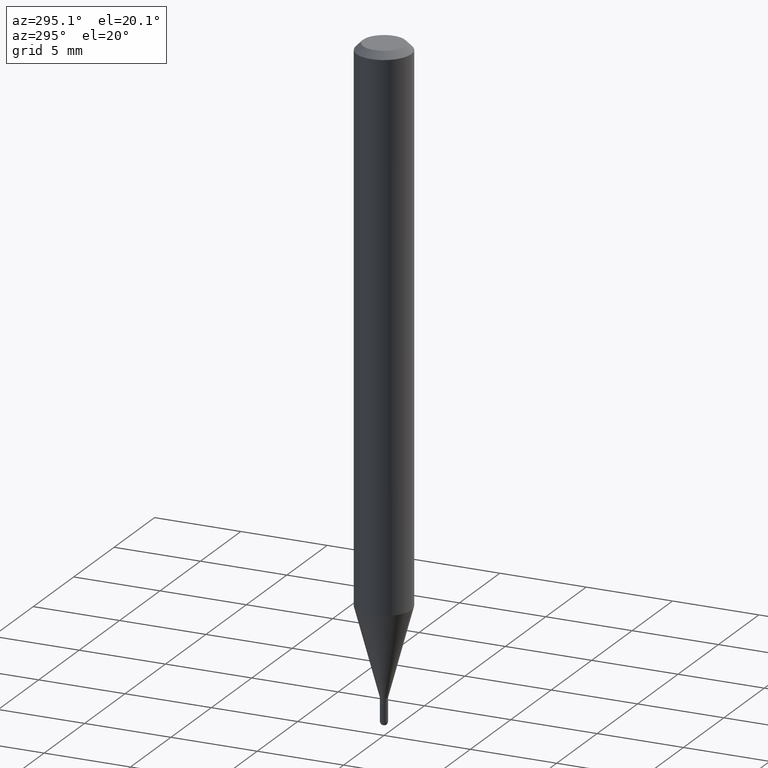
[diagram: clean part render]
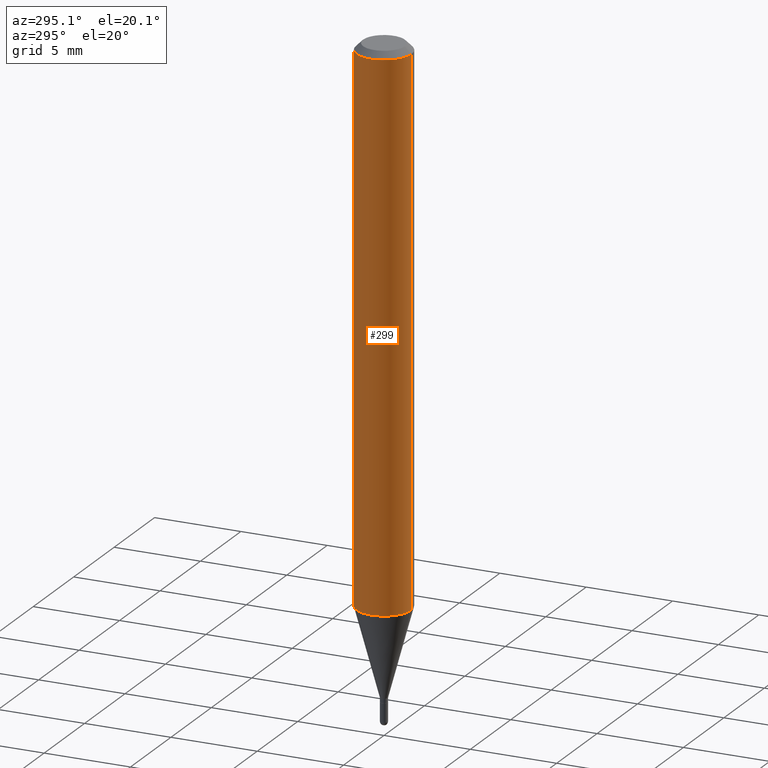
[diagram: same view with one face highlighted and labeled with its STEP entity id]
A machine part, auxiliary view. The second image highlights one B-rep face of the part: STEP entity #299.
In plain terms, the highlighted cylindrical surface (edge-blend (fillet) strip) has radius 1.5875 mm, axis along (-0, 0, 1).
Its self-contained STEP definition (entity closure, byte-faithful):
#4 = AXIS2_PLACEMENT_3D ( 'NONE', #403, #445, #324 ) ;
#6 = VECTOR ( 'NONE', #352, 39.37007874015748143 ) ;
#50 = AXIS2_PLACEMENT_3D ( 'NONE', #503, #65, #460 ) ;
#61 = EDGE_CURVE ( 'NONE', #381, #253, #474, .T. ) ;
#65 = DIRECTION ( 'NONE',  ( -2.445466221238004256E-29, 3.491485040634565202E-15, 1.000000000000000000 ) ) ;
#113 = DIRECTION ( 'NONE',  ( -2.445466221238004536E-29, 3.491485040634565202E-15, 1.000000000000000000 ) ) ;
#114 = AXIS2_PLACEMENT_3D ( 'NONE', #295, #291, #254 ) ;
#116 = CARTESIAN_POINT ( 'NONE',  ( -4.364351673553912750E-16, -0.06250000000000005551, -0.01499999999999979128 ) ) ;
#129 = CARTESIAN_POINT ( 'NONE',  ( 4.440892098500927901E-16, 0.06249999999999569095, -1.237469256391281691 ) ) ;
#164 = ORIENTED_EDGE ( 'NONE', *, *, #166, .T. ) ;
#166 = EDGE_CURVE ( 'NONE', #489, #253, #277, .T. ) ;
#171 = FACE_OUTER_BOUND ( 'NONE', #180, .T. ) ;
#174 = ORIENTED_EDGE ( 'NONE', *, *, #239, .F. ) ;
#180 = EDGE_LOOP ( 'NONE', ( #174, #378, #164, #443 ) ) ;
#195 = LINE ( 'NONE', #236, #6 ) ;
#236 = CARTESIAN_POINT ( 'NONE',  ( 4.440892098500625669E-16, 0.06250000000000000000, -2.182178150396603251E-16 ) ) ;
#239 = EDGE_CURVE ( 'NONE', #290, #381, #195, .T. ) ;
#253 = VERTEX_POINT ( 'NONE', #116 ) ;
#254 = DIRECTION ( 'NONE',  ( -6.982962677686265922E-15, -1.000000000000000000, 3.483106191921935554E-15 ) ) ;
#257 = CARTESIAN_POINT ( 'NONE',  ( 4.440892098500930859E-16, 0.06249999999999995143, -0.01500000000000022669 ) ) ;
#277 = LINE ( 'NONE', #349, #459 ) ;
#290 = VERTEX_POINT ( 'NONE', #129 ) ;
#291 = DIRECTION ( 'NONE',  ( -2.445466221238004256E-29, 3.491485040634565202E-15, 1.000000000000000000 ) ) ;
#295 = CARTESIAN_POINT ( 'NONE',  ( 3.668199331857008749E-31, -5.237227560951850416E-17, -0.01500000000000000812 ) ) ;
#299 = ADVANCED_FACE ( 'NONE', ( #171 ), #358, .T. ) ;
#324 = DIRECTION ( 'NONE',  ( -6.982962677686265922E-15, -1.000000000000000000, 3.491485040634565202E-15 ) ) ;
#349 = CARTESIAN_POINT ( 'NONE',  ( -4.364351673553916201E-16, -0.06250000000000000000, 2.182178150396603251E-16 ) ) ;
#352 = DIRECTION ( 'NONE',  ( -2.445466221238004536E-29, 3.491485040634565202E-15, 1.000000000000000000 ) ) ;
#358 = CYLINDRICAL_SURFACE ( 'NONE', #4, 0.06250000000000000000 ) ;
#378 = ORIENTED_EDGE ( 'NONE', *, *, #478, .T. ) ;
#381 = VERTEX_POINT ( 'NONE', #257 ) ;
#403 = CARTESIAN_POINT ( 'NONE',  ( 0.000000000000000000, 0.000000000000000000, 0.000000000000000000 ) ) ;
#443 = ORIENTED_EDGE ( 'NONE', *, *, #61, .F. ) ;
#445 = DIRECTION ( 'NONE',  ( -2.445466221238004256E-29, 3.491485040634565202E-15, 1.000000000000000000 ) ) ;
#455 = CARTESIAN_POINT ( 'NONE',  ( -4.364351673553615448E-16, -0.06250000000000432987, -1.237469256391281025 ) ) ;
#459 = VECTOR ( 'NONE', #113, 39.37007874015748143 ) ;
#460 = DIRECTION ( 'NONE',  ( -6.982962677686265922E-15, -1.000000000000000000, 4.370956789862821150E-15 ) ) ;
#467 = CIRCLE ( 'NONE', #50, 0.06250000000000000000 ) ;
#474 = CIRCLE ( 'NONE', #114, 0.06250000000000000000 ) ;
#478 = EDGE_CURVE ( 'NONE', #290, #489, #467, .T. ) ;
#489 = VERTEX_POINT ( 'NONE', #455 ) ;
#503 = CARTESIAN_POINT ( 'NONE',  ( 3.026189266325389991E-29, -4.320605396935337558E-15, -1.237469256391281247 ) ) ;